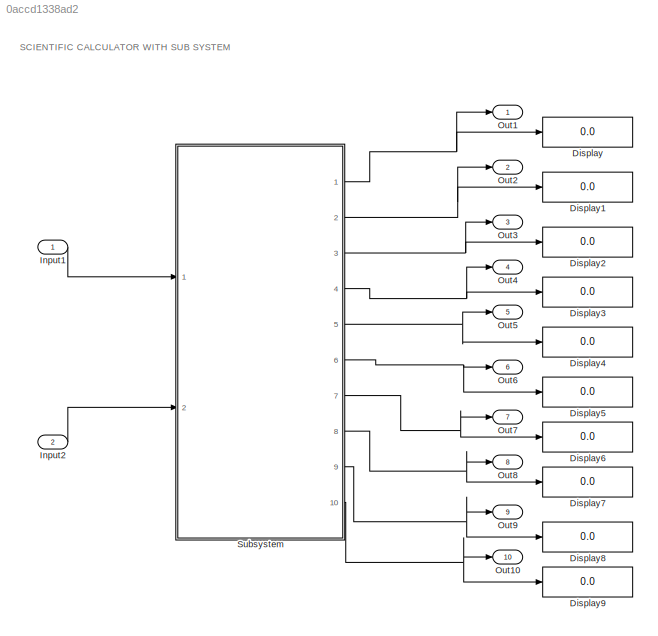
MODEL slx_0accd1338ad2
KIND model
CONFIG AbsTol = auto
CONFIG EnableMultiTasking = off
CONFIG FixedStep = auto
CONFIG MaxStep = auto
CONFIG MinStep = auto
CONFIG RelTol = 1e-3
CONFIG SampleTimeConstraint = Unconstrained
CONFIG Solver = FixedStepDiscrete
CONFIG SolverName = FixedStepDiscrete
CONFIG StartTime = 0.0
CONFIG StopTime = 10.0
BLOCK [Display] Display
  Decimation = 1
  Ports = [1]
BLOCK [Display] Display1
  Decimation = 1
  Ports = [1]
BLOCK [Display] Display2
  Decimation = 1
  Ports = [1]
BLOCK [Display] Display3
  Decimation = 1
  Ports = [1]
BLOCK [Display] Display4
  Decimation = 1
  Ports = [1]
BLOCK [Display] Display5
  Decimation = 1
  Ports = [1]
BLOCK [Display] Display6
  Decimation = 1
  Ports = [1]
BLOCK [Display] Display7
  Decimation = 1
  Ports = [1]
BLOCK [Display] Display8
  Decimation = 1
  Ports = [1]
BLOCK [Display] Display9
  Decimation = 1
  Ports = [1]
BLOCK [Inport] Input1
  IconDisplay = Port number
  OutDataTypeStr = double
BLOCK [Inport] Input2
  IconDisplay = Port number
  OutDataTypeStr = double
  Port = 2
BLOCK [Outport] Out1
  IconDisplay = Port number
  OutDataTypeStr = double
BLOCK [Outport] Out10
  IconDisplay = Port number
  OutDataTypeStr = double
  Port = 10
BLOCK [Outport] Out2
  IconDisplay = Port number
  OutDataTypeStr = double
  Port = 2
BLOCK [Outport] Out3
  IconDisplay = Port number
  OutDataTypeStr = double
  Port = 3
BLOCK [Outport] Out4
  IconDisplay = Port number
  OutDataTypeStr = double
  Port = 4
BLOCK [Outport] Out5
  IconDisplay = Port number
  OutDataTypeStr = double
  Port = 5
BLOCK [Outport] Out6
  IconDisplay = Port number
  OutDataTypeStr = double
  Port = 6
BLOCK [Outport] Out7
  IconDisplay = Port number
  OutDataTypeStr = double
  Port = 7
BLOCK [Outport] Out8
  IconDisplay = Port number
  OutDataTypeStr = double
  Port = 8
BLOCK [Outport] Out9
  IconDisplay = Port number
  OutDataTypeStr = double
  Port = 9
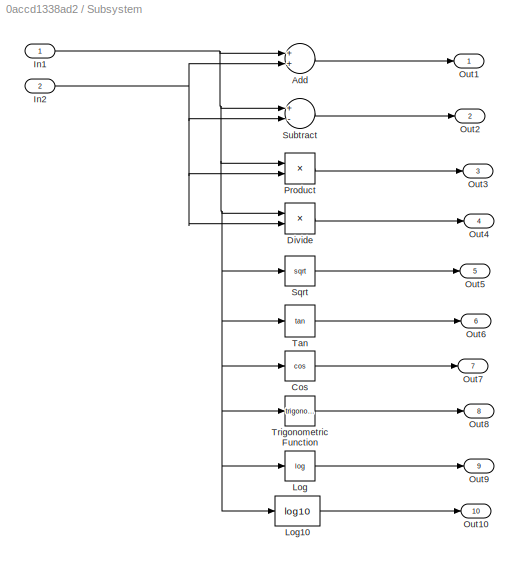
BLOCK [SubSystem] Subsystem
  Ports = [2, 10]
  RequestExecContextInheritance = off
  Variant = off
BLOCK [Sum] Subsystem/Add
  InputSameDT = off
  OutDataTypeStr = Inherit: Inherit via internal rule
  Ports = [2, 1]
  SaturateOnIntegerOverflow = off
BLOCK [Trigonometry] Subsystem/Cos
  Operator = cos
  Ports = [1, 1]
BLOCK [Product] Subsystem/Divide
  InputSameDT = off
  Inputs = */
  OutDataTypeStr = Inherit: Inherit via internal rule
  Ports = [2, 1]
  RndMeth = Floor
  SaturateOnIntegerOverflow = off
BLOCK [Inport] Subsystem/In1
  IconDisplay = Port number
BLOCK [Inport] Subsystem/In2
  IconDisplay = Port number
  Port = 2
BLOCK [Math] Subsystem/Log
  Operator = log
  Ports = [1, 1]
BLOCK [Math] Subsystem/Log10
  Operator = log10
  Ports = [1, 1]
  RndMeth = Zero
BLOCK [Outport] Subsystem/Out1
  IconDisplay = Port number
BLOCK [Outport] Subsystem/Out10
  IconDisplay = Port number
  Port = 10
BLOCK [Outport] Subsystem/Out2
  IconDisplay = Port number
  Port = 2
BLOCK [Outport] Subsystem/Out3
  IconDisplay = Port number
  Port = 3
BLOCK [Outport] Subsystem/Out4
  IconDisplay = Port number
  Port = 4
BLOCK [Outport] Subsystem/Out5
  IconDisplay = Port number
  Port = 5
BLOCK [Outport] Subsystem/Out6
  IconDisplay = Port number
  Port = 6
BLOCK [Outport] Subsystem/Out7
  IconDisplay = Port number
  Port = 7
BLOCK [Outport] Subsystem/Out8
  IconDisplay = Port number
  Port = 8
BLOCK [Outport] Subsystem/Out9
  IconDisplay = Port number
  Port = 9
BLOCK [Product] Subsystem/Product
  InputSameDT = off
  OutDataTypeStr = Inherit: Inherit via internal rule
  Ports = [2, 1]
  RndMeth = Floor
  SaturateOnIntegerOverflow = off
BLOCK [Sqrt] Subsystem/Sqrt
BLOCK [Sum] Subsystem/Subtract
  InputSameDT = off
  Inputs = +-
  OutDataTypeStr = Inherit: Inherit via internal rule
  Ports = [2, 1]
  SaturateOnIntegerOverflow = off
BLOCK [Trigonometry] Subsystem/Tan
  Operator = tan
  Ports = [1, 1]
BLOCK [Trigonometry] Subsystem/Trigonometric Function
  Ports = [1, 1]
ANNOTATION (root): SCIENTIFIC CALCULATOR WITH SUB SYSTEM
LINE Input1:1 -> Subsystem:1
LINE Input2:1 -> Subsystem:2
LINE Subsystem/Add:1 -> Subsystem/Out1:1
LINE Subsystem/Cos:1 -> Subsystem/Out7:1
LINE Subsystem/Divide:1 -> Subsystem/Out4:1
NET Subsystem/In1:1 -> Subsystem/Add:1, Subsystem/Cos:1, Subsystem/Divide:1, Subsystem/Log10:1, Subsystem/Log:1, Subsystem/Product:1, Subsystem/Sqrt:1, Subsystem/Subtract:1, Subsystem/Tan:1, Subsystem/Trigonometric Function:1
NET Subsystem/In2:1 -> Subsystem/Add:2, Subsystem/Divide:2, Subsystem/Product:2, Subsystem/Subtract:2
LINE Subsystem/Log10:1 -> Subsystem/Out10:1
LINE Subsystem/Log:1 -> Subsystem/Out9:1
LINE Subsystem/Product:1 -> Subsystem/Out3:1
LINE Subsystem/Sqrt:1 -> Subsystem/Out5:1
LINE Subsystem/Subtract:1 -> Subsystem/Out2:1
LINE Subsystem/Tan:1 -> Subsystem/Out6:1
LINE Subsystem/Trigonometric Function:1 -> Subsystem/Out8:1
NET Subsystem:1 -> Display:1, Out1:1
NET Subsystem:10 -> Display9:1, Out10:1
NET Subsystem:2 -> Display1:1, Out2:1
NET Subsystem:3 -> Display2:1, Out3:1
NET Subsystem:4 -> Display3:1, Out4:1
NET Subsystem:5 -> Display4:1, Out5:1
NET Subsystem:6 -> Display5:1, Out6:1
NET Subsystem:7 -> Display6:1, Out7:1
NET Subsystem:8 -> Display7:1, Out8:1
NET Subsystem:9 -> Display8:1, Out9:1
note: NET lines group one-source signal fan-out (src -> all destinations, sorted); 1:1 wires keep LINE
